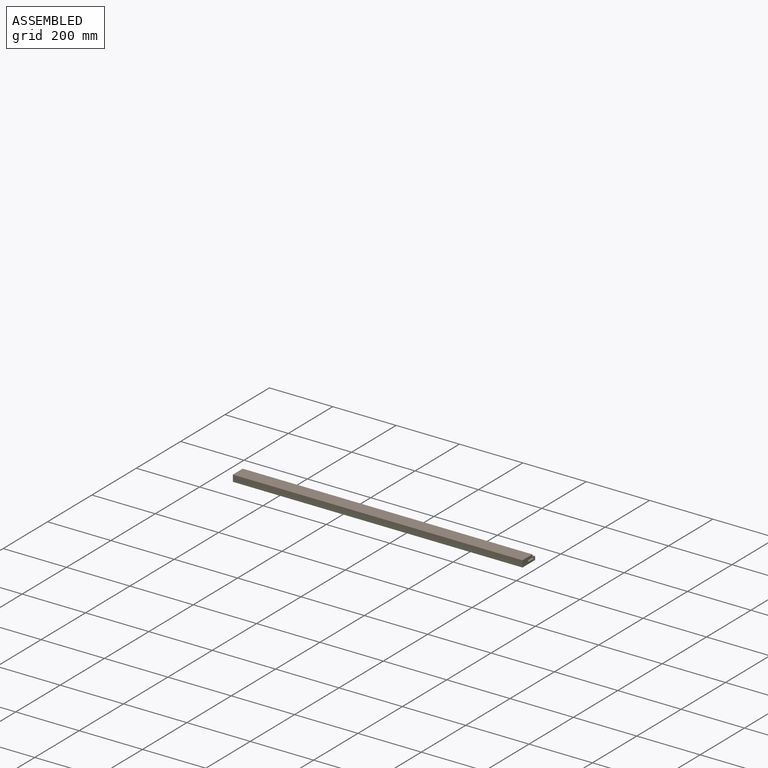
[diagram: assembled view]
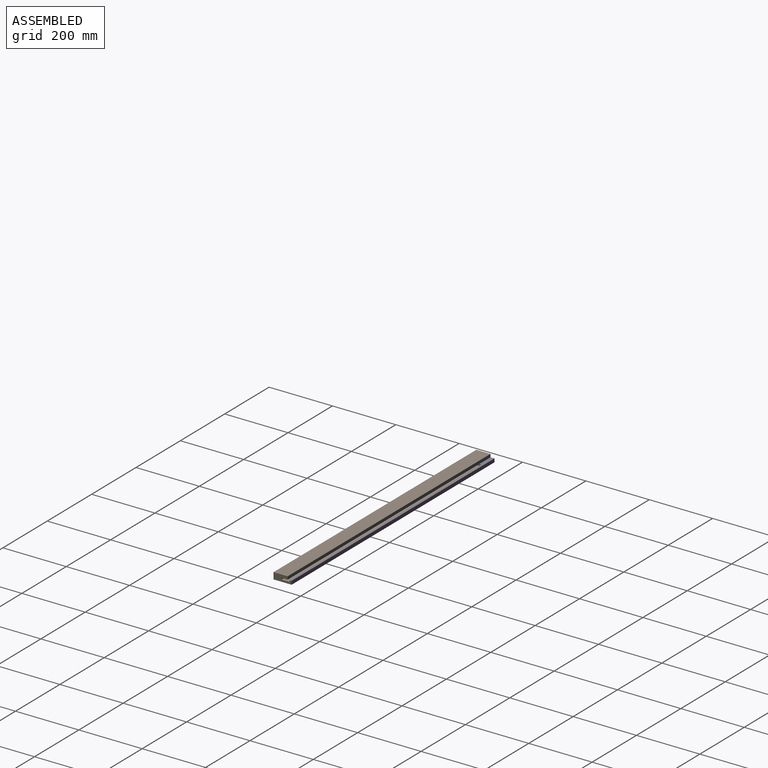
[diagram: assembled view, second angle]
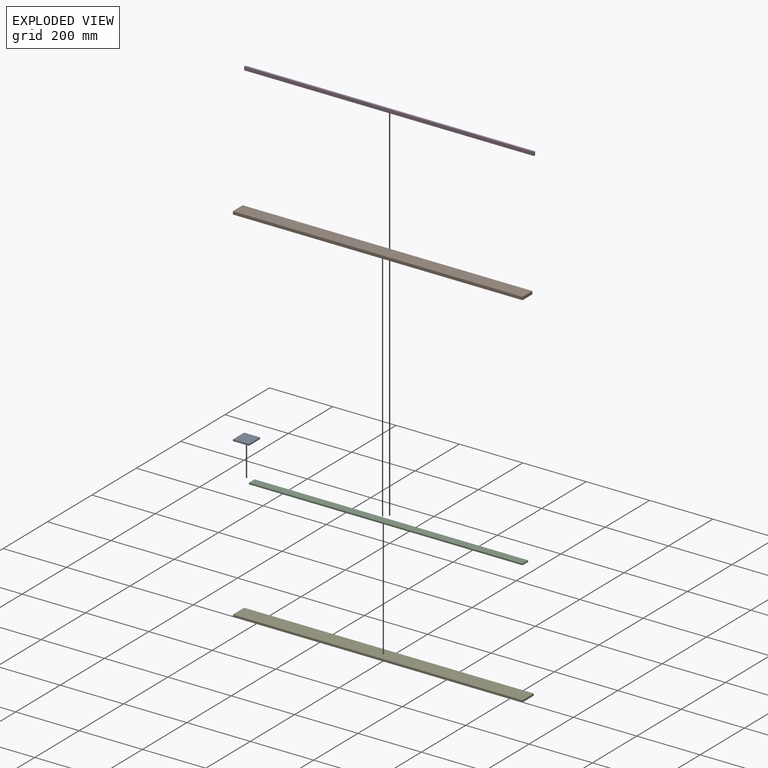
[diagram: exploded view]
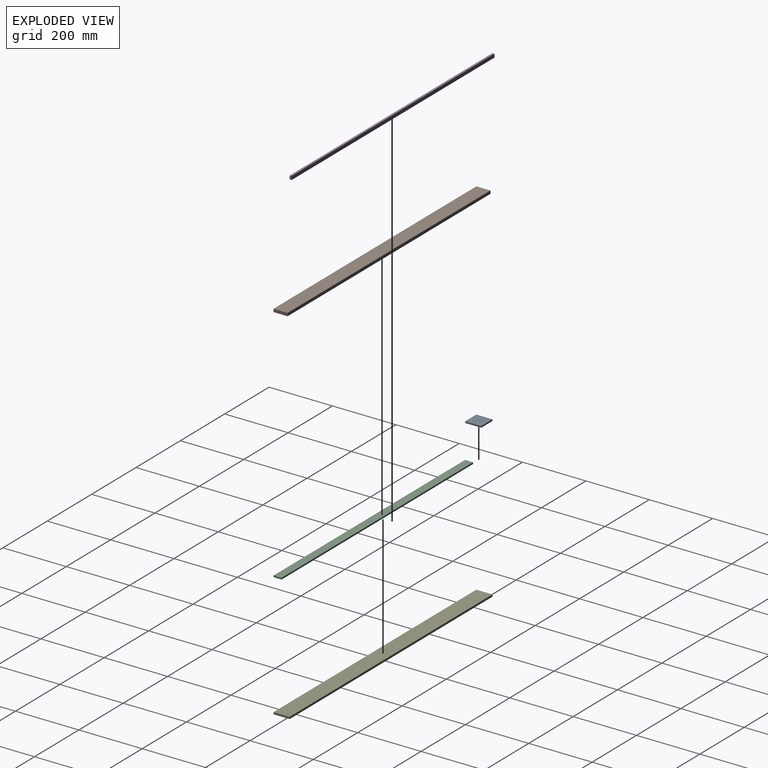
[diagram: exploded view, second angle]
ASSEMBLY  parts=5 mates=4
PART A: 6 faces, bbox 50.8x50.8x4.8 mm
  f0: plane 50.8x4.76mm, normal (1,0,0), area 241.9mm2, adj f1,f3,f4,f5
  f1: plane 50.8x4.76mm, normal (0,1,0), area 241.9mm2, adj f0,f2,f4,f5
  f2: plane 50.8x4.76mm, normal (-1,0,0), area 241.9mm2, adj f1,f3,f4,f5
  f3: plane 50.8x4.76mm, normal (0,-1,0), area 241.9mm2, adj f0,f2,f4,f5
  f4: plane 50.8x50.8mm, normal (0,0,1), area 2580.6mm2, adj f0,f1,f2,f3
  f5: plane 50.8x50.8mm, normal (0,0,-1), area 2580.6mm2, adj f0,f1,f2,f3
PART B: 6 faces, bbox 914.4x44.5x9.5 mm
  f0: plane 44.45x9.53mm, normal (1,0,0), area 423.4mm2, adj f1,f3,f4,f5
  f1: plane 914.4x9.53mm, normal (0,1,0), area 8709.7mm2, adj f0,f2,f4,f5
  f2: plane 44.45x9.53mm, normal (-1,0,0), area 423.4mm2, adj f1,f3,f4,f5
  f3: plane 914.4x9.53mm, normal (0,-1,0), area 8709.7mm2, adj f0,f2,f4,f5
  f4: plane 914.4x44.45mm, normal (0,0,1), area 40645.1mm2, adj f0,f1,f2,f3
  f5: plane 914.4x44.45mm, normal (0,0,-1), area 40645.1mm2, adj f0,f1,f2,f3
PART C: 6 faces, bbox 863.6x25.4x4.8 mm
  f0: plane 25.4x4.76mm, normal (1,0,0), area 121mm2, adj f1,f3,f4,f5
  f1: plane 863.6x4.76mm, normal (0,1,0), area 4112.9mm2, adj f0,f2,f4,f5
  f2: plane 25.4x4.76mm, normal (-1,0,0), area 121mm2, adj f1,f3,f4,f5
  f3: plane 863.6x4.76mm, normal (0,-1,0), area 4112.9mm2, adj f0,f2,f4,f5
  f4: plane 863.6x25.4mm, normal (0,0,1), area 21935.4mm2, adj f0,f1,f2,f3
  f5: plane 863.6x25.4mm, normal (0,0,-1), area 21935.4mm2, adj f0,f1,f2,f3
PART D: 6 faces, bbox 914.4x6.4x11.1 mm
  f0: plane 11.11x6.35mm, normal (-1,0,0), area 70.6mm2, adj f1,f3,f4,f5
  f1: plane 914.4x6.35mm, normal (0,0,-1), area 5806.4mm2, adj f0,f2,f4,f5
  f2: plane 11.11x6.35mm, normal (1,0,0), area 70.6mm2, adj f1,f3,f4,f5
  f3: plane 914.4x6.35mm, normal (0,0,1), area 5806.4mm2, adj f0,f2,f4,f5
  f4: plane 914.4x11.11mm, normal (0,-1,0), area 10161.3mm2, adj f0,f1,f2,f3
  f5: plane 914.4x11.11mm, normal (0,1,0), area 10161.3mm2, adj f0,f1,f2,f3
PART E: 6 faces, bbox 914.4x50.8x6.4 mm
  f0: plane 50.8x6.35mm, normal (1,0,0), area 322.6mm2, adj f1,f3,f4,f5
  f1: plane 914.4x6.35mm, normal (0,1,0), area 5806.4mm2, adj f0,f2,f4,f5
  f2: plane 50.8x6.35mm, normal (-1,0,0), area 322.6mm2, adj f1,f3,f4,f5
  f3: plane 914.4x6.35mm, normal (0,-1,0), area 5806.4mm2, adj f0,f2,f4,f5
  f4: plane 914.4x50.8mm, normal (0,0,-1), area 46451.5mm2, adj f0,f1,f2,f3
  f5: plane 914.4x50.8mm, normal (0,0,1), area 46451.5mm2, adj f0,f1,f2,f3
PLACE A t=(-431.8,0,0)mm
PLACE B t=(0,-3.18,4.76)mm
PLACE C t=(25.4,-12.7,0)mm
PLACE D t=(0,31.75,-6.35)mm
PLACE E at identity fixed
MATE fastened C.f4 <-> B.f5  axis (0,0,1) through (457.2,-25.4,4.76)mm
MATE fastened C.f5 <-> E.f5  axis (0,0,1) through (457.2,-25.4,0)mm
MATE fastened A.f5 <-> E.f5  axis (0,0,1) through (-457.2,-25.4,0)mm
MATE fastened E.f4 <-> D.f1  axis (0,0,1) through (-457.2,25.4,-6.35)mm
